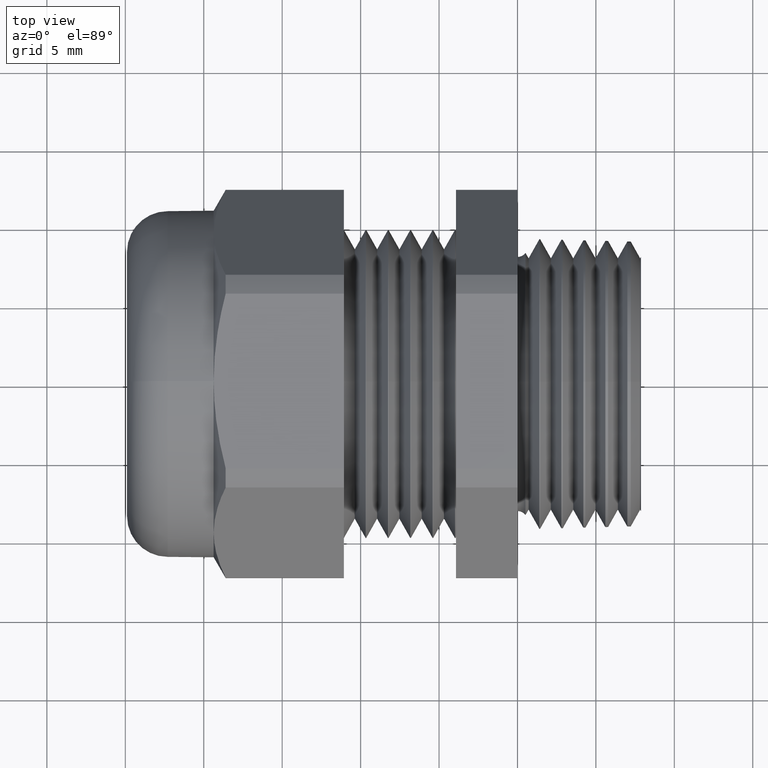
[diagram: clean part render]
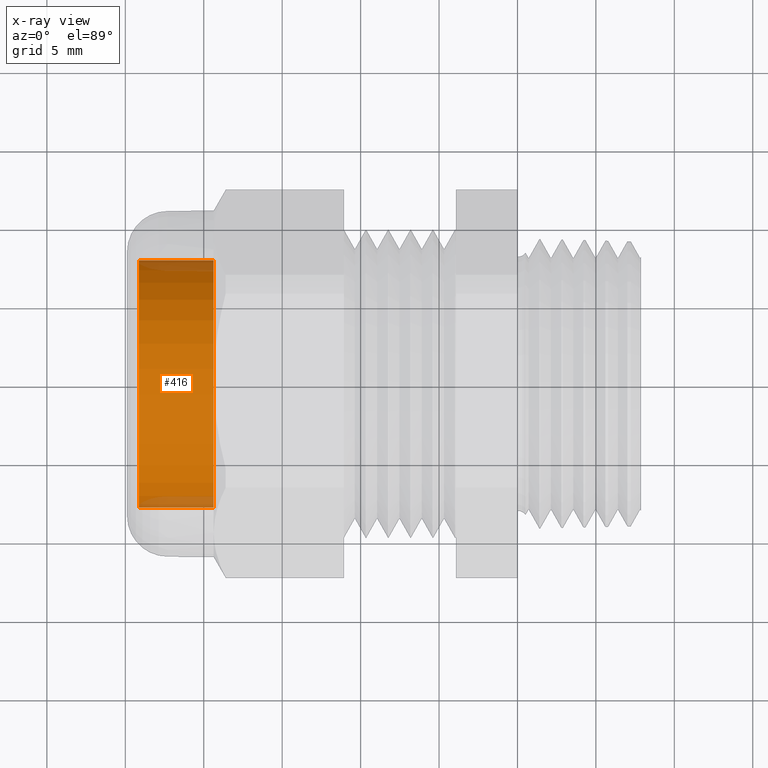
[diagram: x-ray — body ghosted, one internal face saturated and labeled with its STEP entity id]
A machine part, top view, then the same camera in x-ray: the body is ghosted and one INTERNAL B-rep face — a face not visible from any outside direction — is saturated and labeled: STEP entity #416.
In plain terms, the highlighted cylindrical surface (partial cylindrical patch) has radius 7.8804 mm, axis along (1, 0, 0).
Its self-contained STEP definition (entity closure, byte-faithful):
#346 = ORIENTED_EDGE ( 'NONE', *, *, #378, .F. ) ;
#375 = VERTEX_POINT ( 'NONE', #3208 ) ;
#378 = EDGE_CURVE ( 'NONE', #398, #375, #3202, .T. ) ;
#383 = EDGE_CURVE ( 'NONE', #375, #394, #3255, .T. ) ;
#384 = ORIENTED_EDGE ( 'NONE', *, *, #383, .F. ) ;
#390 = VERTEX_POINT ( 'NONE', #3238 ) ;
#393 = EDGE_CURVE ( 'NONE', #390, #394, #3233, .T. ) ;
#394 = VERTEX_POINT ( 'NONE', #3293 ) ;
#397 = EDGE_CURVE ( 'NONE', #398, #390, #3286, .T. ) ;
#398 = VERTEX_POINT ( 'NONE', #3281 ) ;
#399 = ORIENTED_EDGE ( 'NONE', *, *, #393, .T. ) ;
#401 = ORIENTED_EDGE ( 'NONE', *, *, #397, .T. ) ;
#416 = ADVANCED_FACE ( 'NONE', ( #3319 ), #3318, .T. ) ;
#418 = EDGE_LOOP ( 'NONE', ( #401, #399, #384, #346 ) ) ;
#3201 = CARTESIAN_POINT ( 'NONE',  ( 0.3764656411965714400, 0.3102500000000001400, 0.0000000000000000000 ) ) ;
#3202 = LINE ( 'NONE', #3201, #3263 ) ;
#3208 = CARTESIAN_POINT ( 'NONE',  ( -0.7624999999999999600, 0.3102499999999999700, 0.0000000000000000000 ) ) ;
#3233 = LINE ( 'NONE', #3296, #3295 ) ;
#3238 = CARTESIAN_POINT ( 'NONE',  ( -0.9499999999999999600, -0.3102500000000002500, 3.799466694354665100E-017 ) ) ;
#3251 = DIRECTION ( 'NONE',  ( 0.0000000000000000000, 1.000000000000000000, 0.0000000000000000000 ) ) ;
#3252 = DIRECTION ( 'NONE',  ( 1.000000000000000000, 1.214306433183765200E-016, 0.0000000000000000000 ) ) ;
#3253 = CARTESIAN_POINT ( 'NONE',  ( -0.7624999999999999600, -1.383053305280268800E-016, 0.0000000000000000000 ) ) ;
#3254 = AXIS2_PLACEMENT_3D ( 'NONE', #3253, #3252, #3251 ) ;
#3255 = CIRCLE ( 'NONE', #3254, 0.3102500000000001400 ) ;
#3262 = DIRECTION ( 'NONE',  ( 1.000000000000000000, 1.214306433183765200E-016, 0.0000000000000000000 ) ) ;
#3263 = VECTOR ( 'NONE', #3262, 39.37007874015748100 ) ;
#3281 = CARTESIAN_POINT ( 'NONE',  ( -0.9499999999999999600, 0.3102499999999999700, 0.0000000000000000000 ) ) ;
#3282 = DIRECTION ( 'NONE',  ( 0.0000000000000000000, -1.000000000000000000, 0.0000000000000000000 ) ) ;
#3283 = DIRECTION ( 'NONE',  ( 1.000000000000000000, 1.214306433183765200E-016, 0.0000000000000000000 ) ) ;
#3284 = CARTESIAN_POINT ( 'NONE',  ( -0.9499999999999999600, -1.610735761502225000E-016, 0.0000000000000000000 ) ) ;
#3285 = AXIS2_PLACEMENT_3D ( 'NONE', #3284, #3283, #3282 ) ;
#3286 = CIRCLE ( 'NONE', #3285, 0.3102500000000001400 ) ;
#3293 = CARTESIAN_POINT ( 'NONE',  ( -0.7624999999999999600, -0.3102500000000002500, 3.799466694354665100E-017 ) ) ;
#3294 = DIRECTION ( 'NONE',  ( 1.000000000000000000, 1.214306433183765200E-016, 0.0000000000000000000 ) ) ;
#3295 = VECTOR ( 'NONE', #3294, 39.37007874015748100 ) ;
#3296 = CARTESIAN_POINT ( 'NONE',  ( 0.3764656411965715500, -0.3102500000000001400, 3.799466694354665100E-017 ) ) ;
#3314 = DIRECTION ( 'NONE',  ( -2.201327956216166000E-016, 1.000000000000000000, 0.0000000000000000000 ) ) ;
#3315 = DIRECTION ( 'NONE',  ( 1.000000000000000000, 1.214306433183765200E-016, 0.0000000000000000000 ) ) ;
#3316 = CARTESIAN_POINT ( 'NONE',  ( 0.3764656411965715000, 0.0000000000000000000, 0.0000000000000000000 ) ) ;
#3317 = AXIS2_PLACEMENT_3D ( 'NONE', #3316, #3315, #3314 ) ;
#3318 = CYLINDRICAL_SURFACE ( 'NONE', #3317, 0.3102500000000001400 ) ;
#3319 = FACE_OUTER_BOUND ( 'NONE', #418, .T. ) ;